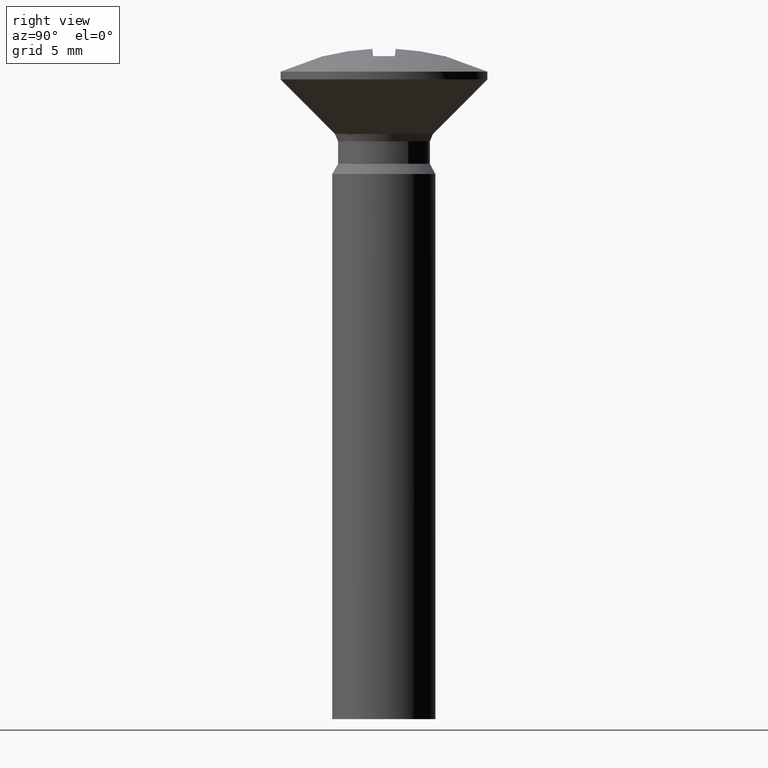
[diagram: clean part render]
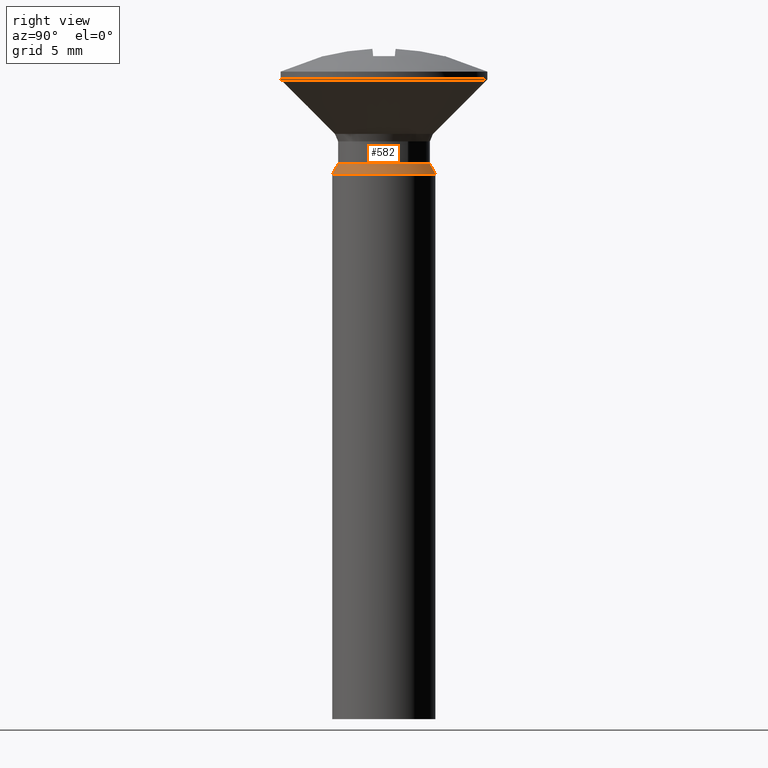
[diagram: same view with one face highlighted and labeled with its STEP entity id]
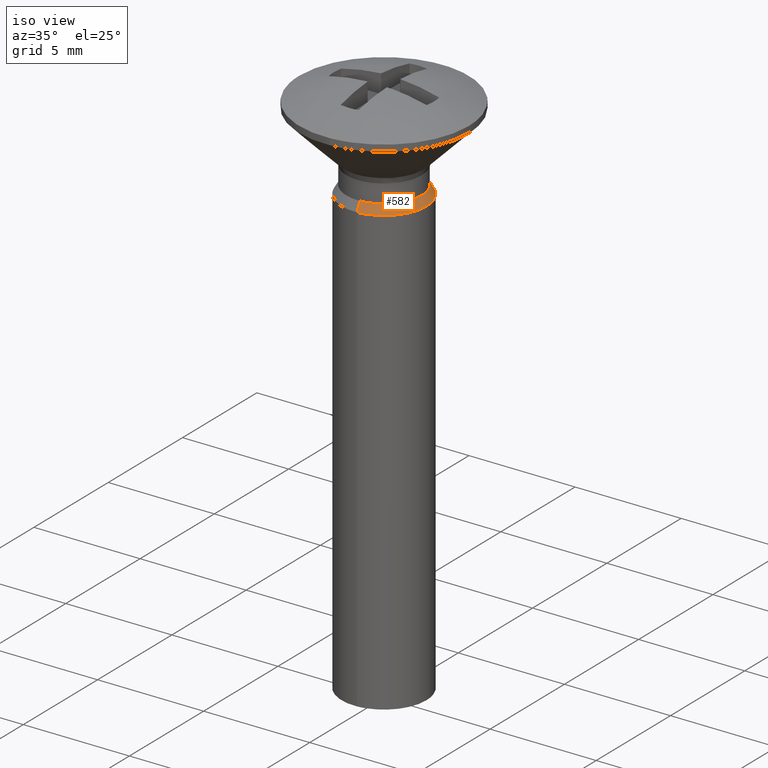
[diagram: same view with one face highlighted and labeled with its STEP entity id]
A machine part, right view. The second image highlights one B-rep face of the part: STEP entity #582.
A second angle (iso view) of the same face is appended — the face is thin or edge-on in the first view.
In plain terms, the highlighted face is a freeform B-spline surface patch.
Its self-contained STEP definition (entity closure, byte-faithful):
#301=CARTESIAN_POINT('',(-0.236066498881312,1.986019286941086,-3.951800000000000));
#302=VERTEX_POINT('',#301);
#308=CARTESIAN_POINT('',(2.0,0.0,-3.951800000000000));
#309=VERTEX_POINT('',#308);
#310=CARTESIAN_POINT('',(-0.236066498881312,1.986019286941087,-3.951800000000001));
#311=CARTESIAN_POINT('',(-0.118447243672286,2.000000000000000,-3.951800000000000));
#312=CARTESIAN_POINT('',(0.0,2.0,-3.951800000000000));
#313=CARTESIAN_POINT('',(2.000000000000000,2.000000000000000,-3.951800000000000));
#314=CARTESIAN_POINT('',(2.0,0.0,-3.951800000000000));
#322=(BOUNDED_CURVE()B_SPLINE_CURVE(2,(#310,#311,#312,#313,#314),.UNSPECIFIED.,.F.,.U.)B_SPLINE_CURVE_WITH_KNOTS((3,2,3),(0.229562641192517,0.250000000000000,0.500000000000000),.UNSPECIFIED.)CURVE()GEOMETRIC_REPRESENTATION_ITEM()RATIONAL_B_SPLINE_CURVE((0.956027082841683,0.976056144779324,1.0,0.707106781186548,1.0))REPRESENTATION_ITEM(''));
#323=EDGE_CURVE('',#302,#309,#322,.T.);
#325=CARTESIAN_POINT('',(0.122097079094370,-1.996269596844734,-3.951800000008670));
#326=VERTEX_POINT('',#325);
#327=CARTESIAN_POINT('',(2.0,0.0,-3.951800000000000));
#328=CARTESIAN_POINT('',(2.0,-1.881412133718839,-3.951800000000000));
#329=CARTESIAN_POINT('',(0.122097079094370,-1.996269596844734,-3.951800000008669));
#337=(BOUNDED_CURVE()B_SPLINE_CURVE(2,(#327,#328,#329),.UNSPECIFIED.,.F.,.U.)B_SPLINE_CURVE_WITH_KNOTS((3,3),(0.500000000000000,0.739332962233496),.UNSPECIFIED.)CURVE()GEOMETRIC_REPRESENTATION_ITEM()RATIONAL_B_SPLINE_CURVE((1.0,0.719603993293092,0.976072041655044))REPRESENTATION_ITEM(''));
#338=EDGE_CURVE('',#309,#326,#337,.T.);
#412=CARTESIAN_POINT('',(-1.872287157541096,-0.703235948826450,-3.951800000006558));
#413=VERTEX_POINT('',#412);
#429=CARTESIAN_POINT('',(-2.0,0.0,-3.951800000000000));
#430=VERTEX_POINT('',#429);
#431=CARTESIAN_POINT('',(-1.872287157541095,-0.703235948826450,-3.951800000006558));
#432=CARTESIAN_POINT('',(-2.000000000000000,-0.363214772179837,-3.951800000000000));
#433=CARTESIAN_POINT('',(-2.0,0.0,-3.951800000000000));
#441=(BOUNDED_CURVE()B_SPLINE_CURVE(2,(#431,#432,#433),.UNSPECIFIED.,.F.,.U.)B_SPLINE_CURVE_WITH_KNOTS((3,3),(0.940284170891827,1.0),.UNSPECIFIED.)CURVE()GEOMETRIC_REPRESENTATION_ITEM()RATIONAL_B_SPLINE_CURVE((0.893499554627099,0.930038554393573,1.0))REPRESENTATION_ITEM(''));
#442=EDGE_CURVE('',#413,#430,#441,.T.);
#444=CARTESIAN_POINT('',(-2.0,0.0,-3.951800000000000));
#445=CARTESIAN_POINT('',(-1.999999999999999,1.776350826717857,-3.951800000000001));
#446=CARTESIAN_POINT('',(-0.236066498881312,1.986019286941087,-3.951800000000001));
#454=(BOUNDED_CURVE()B_SPLINE_CURVE(2,(#444,#445,#446),.UNSPECIFIED.,.F.,.U.)B_SPLINE_CURVE_WITH_KNOTS((3,3),(0.0,0.229562641192517),.UNSPECIFIED.)CURVE()GEOMETRIC_REPRESENTATION_ITEM()RATIONAL_B_SPLINE_CURVE((1.0,0.731050636407224,0.956027082841683))REPRESENTATION_ITEM(''));
#455=EDGE_CURVE('',#430,#302,#454,.T.);
#461=CARTESIAN_POINT('',(-1.653990176777332,-0.621243032379709,-3.547847500000001));
#462=CARTESIAN_POINT('',(-1.747313991464590,-0.372778800658930,-3.547847500000001));
#463=CARTESIAN_POINT('',(-1.763517038536734,-0.107861322756930,-3.547847500000000));
#464=CARTESIAN_POINT('',(-1.871378361293664,1.655655715779805,-3.547847500000000));
#465=CARTESIAN_POINT('',(-0.107861322756930,1.763517038536734,-3.547847500000000));
#466=CARTESIAN_POINT('',(1.655655715779805,1.871378361293664,-3.547847500000000));
#467=CARTESIAN_POINT('',(1.763517038536734,0.107861322756930,-3.547847500000000));
#468=CARTESIAN_POINT('',(1.871378361293664,-1.655655715779805,-3.547847500000000));
#469=CARTESIAN_POINT('',(0.107861322756930,-1.763517038536734,-3.547847500000000));
#470=CARTESIAN_POINT('',(-1.877744582072719,-0.705285771693232,-3.961898812500000));
#471=CARTESIAN_POINT('',(-1.983693389911949,-0.423208906000115,-3.961898812500000));
#472=CARTESIAN_POINT('',(-2.002088410801413,-0.122452972977534,-3.961898812500000));
#473=CARTESIAN_POINT('',(-2.124541383778947,1.879635437823880,-3.961898812499999));
#474=CARTESIAN_POINT('',(-0.122452972977534,2.002088410801413,-3.961898812500000));
#475=CARTESIAN_POINT('',(1.879635437823880,2.124541383778947,-3.961898812499999));
#476=CARTESIAN_POINT('',(2.002088410801413,0.122452972977534,-3.961898812500000));
#477=CARTESIAN_POINT('',(2.124541383778947,-1.879635437823880,-3.961898812499999));
#478=CARTESIAN_POINT('',(0.122452972977534,-2.002088410801413,-3.961898812500000));
#486=(BOUNDED_SURFACE()B_SPLINE_SURFACE(2,1,((#461,#470),(#462,#471),(#463,#472),(#464,#473),(#465,#474),(#466,#475),(#467,#476),(#468,#477),(#469,#478)),.UNSPECIFIED.,.F.,.F.,.U.)B_SPLINE_SURFACE_WITH_KNOTS((3,2,2,2,3),(2,2),(0.0,0.664673488298471,3.988040929790826,7.311408371283181,10.634775812775541),(0.0,0.478087549830976),.UNSPECIFIED.)GEOMETRIC_REPRESENTATION_ITEM()RATIONAL_B_SPLINE_SURFACE(((0.906274169979695,0.906274169979695),(0.941421356237309,0.941421356237309),(1.0,1.0),(0.707106781186548,0.707106781186548),(1.0,1.0),(0.707106781186548,0.707106781186548),(1.0,1.0),(0.707106781186548,0.707106781186548),(1.0,1.0)))REPRESENTATION_ITEM('')SURFACE());
#487=ORIENTED_EDGE('',*,*,#442,.F.);
#488=CARTESIAN_POINT('',(-1.659314493379888,-0.623242859615206,-3.557700000000925));
#489=VERTEX_POINT('',#488);
#490=CARTESIAN_POINT('',(-1.659314493379888,-0.623242859615206,-3.557700000000925));
#491=CARTESIAN_POINT('',(-1.872287157541096,-0.703235948826450,-3.951800000006558));
#492=QUASI_UNIFORM_CURVE('',1,(#490,#491),.UNSPECIFIED.,.F.,.U.);
#493=EDGE_CURVE('',#489,#413,#492,.T.);
#494=ORIENTED_EDGE('',*,*,#493,.F.);
#495=CARTESIAN_POINT('',(-1.772500000000000,0.0,-3.557700000000000));
#496=VERTEX_POINT('',#495);
#497=CARTESIAN_POINT('',(-1.659314493379887,-0.623242859615206,-3.557700000000926));
#498=CARTESIAN_POINT('',(-1.772500000000000,-0.321899091809906,-3.557700000000000));
#499=CARTESIAN_POINT('',(-1.772500000000000,0.0,-3.557700000000000));
#507=(BOUNDED_CURVE()B_SPLINE_CURVE(2,(#497,#498,#499),.UNSPECIFIED.,.F.,.U.)B_SPLINE_CURVE_WITH_KNOTS((3,3),(0.940284170897776,1.0),.UNSPECIFIED.)CURVE()GEOMETRIC_REPRESENTATION_ITEM()RATIONAL_B_SPLINE_CURVE((0.893499554634378,0.930038554400542,1.0))REPRESENTATION_ITEM(''));
#508=EDGE_CURVE('',#489,#496,#507,.T.);
#509=ORIENTED_EDGE('',*,*,#508,.T.);
#510=CARTESIAN_POINT('',(0.473680021608320,1.708034978309619,-3.557700000000001));
#511=VERTEX_POINT('',#510);
#512=CARTESIAN_POINT('',(-1.772500000000000,0.0,-3.557700000000000));
#513=CARTESIAN_POINT('',(-1.772500000000001,1.772500000000001,-3.557700000000001));
#514=CARTESIAN_POINT('',(0.0,1.772500000000000,-3.557700000000000));
#515=CARTESIAN_POINT('',(0.241226663013221,1.772500000000000,-3.557700000000000));
#516=CARTESIAN_POINT('',(0.473680021608320,1.708034978309619,-3.557700000000001));
#524=(BOUNDED_CURVE()B_SPLINE_CURVE(2,(#512,#513,#514,#515,#516),.UNSPECIFIED.,.F.,.U.)B_SPLINE_CURVE_WITH_KNOTS((3,2,3),(0.0,0.250000000000000,0.295548826635804),.UNSPECIFIED.)CURVE()GEOMETRIC_REPRESENTATION_ITEM()RATIONAL_B_SPLINE_CURVE((1.0,0.707106781186548,1.0,0.946636230213854,0.912717717216685))REPRESENTATION_ITEM(''));
#525=EDGE_CURVE('',#496,#511,#524,.T.);
#526=ORIENTED_EDGE('',*,*,#525,.T.);
#527=CARTESIAN_POINT('',(1.512943908858851,0.923448416884723,-3.557700000000000));
#528=VERTEX_POINT('',#527);
#529=CARTESIAN_POINT('',(0.473680021608320,1.708034978309620,-3.557700000000001));
#530=CARTESIAN_POINT('',(1.148242161869747,1.520962340313416,-3.557700000000000));
#531=CARTESIAN_POINT('',(1.512943908858850,0.923448416884723,-3.557700000000000));
#539=(BOUNDED_CURVE()B_SPLINE_CURVE(2,(#529,#530,#531),.UNSPECIFIED.,.F.,.U.)B_SPLINE_CURVE_WITH_KNOTS((3,3),(0.295548826635804,0.410988855204338),.UNSPECIFIED.)CURVE()GEOMETRIC_REPRESENTATION_ITEM()RATIONAL_B_SPLINE_CURVE((0.912717717216686,0.826753831896365,0.865692738530429))REPRESENTATION_ITEM(''));
#540=EDGE_CURVE('',#511,#528,#539,.T.);
#541=ORIENTED_EDGE('',*,*,#540,.T.);
#542=CARTESIAN_POINT('',(1.772500000000000,0.0,-3.557700000000000));
#543=VERTEX_POINT('',#542);
#544=CARTESIAN_POINT('',(1.512943908858850,0.923448416884723,-3.557700000000000));
#545=CARTESIAN_POINT('',(1.772500000000000,0.498201267267429,-3.557700000000000));
#546=CARTESIAN_POINT('',(1.772500000000000,0.0,-3.557700000000000));
#554=(BOUNDED_CURVE()B_SPLINE_CURVE(2,(#544,#545,#546),.UNSPECIFIED.,.F.,.U.)B_SPLINE_CURVE_WITH_KNOTS((3,3),(0.410988855204338,0.500000000000000),.UNSPECIFIED.)CURVE()GEOMETRIC_REPRESENTATION_ITEM()RATIONAL_B_SPLINE_CURVE((0.865692738530429,0.895716957162113,1.0))REPRESENTATION_ITEM(''));
#555=EDGE_CURVE('',#528,#543,#554,.T.);
#556=ORIENTED_EDGE('',*,*,#555,.T.);
#557=CARTESIAN_POINT('',(0.108208536413935,-1.769193930206325,-3.557700000015515));
#558=VERTEX_POINT('',#557);
#559=CARTESIAN_POINT('',(1.772500000000000,0.0,-3.557700000000000));
#560=CARTESIAN_POINT('',(1.772500000000000,-1.667401503424438,-3.557700000000001));
#561=CARTESIAN_POINT('',(0.108208536413935,-1.769193930206326,-3.557700000015515));
#569=(BOUNDED_CURVE()B_SPLINE_CURVE(2,(#559,#560,#561),.UNSPECIFIED.,.F.,.U.)B_SPLINE_CURVE_WITH_KNOTS((3,3),(0.500000000000000,0.739332962224832),.UNSPECIFIED.)CURVE()GEOMETRIC_REPRESENTATION_ITEM()RATIONAL_B_SPLINE_CURVE((1.0,0.719603993303242,0.976072041636475))REPRESENTATION_ITEM(''));
#570=EDGE_CURVE('',#543,#558,#569,.T.);
#571=ORIENTED_EDGE('',*,*,#570,.T.);
#572=CARTESIAN_POINT('',(0.108208536413935,-1.769193930206325,-3.557700000015515));
#573=CARTESIAN_POINT('',(0.122097079094370,-1.996269596844734,-3.951800000008670));
#574=QUASI_UNIFORM_CURVE('',1,(#572,#573),.UNSPECIFIED.,.F.,.U.);
#575=EDGE_CURVE('',#558,#326,#574,.T.);
#576=ORIENTED_EDGE('',*,*,#575,.T.);
#577=ORIENTED_EDGE('',*,*,#338,.F.);
#578=ORIENTED_EDGE('',*,*,#323,.F.);
#579=ORIENTED_EDGE('',*,*,#455,.F.);
#580=EDGE_LOOP('',(#487,#494,#509,#526,#541,#556,#571,#576,#577,#578,#579));
#581=FACE_OUTER_BOUND('',#580,.T.);
#582=ADVANCED_FACE('',(#581),#486,.T.);